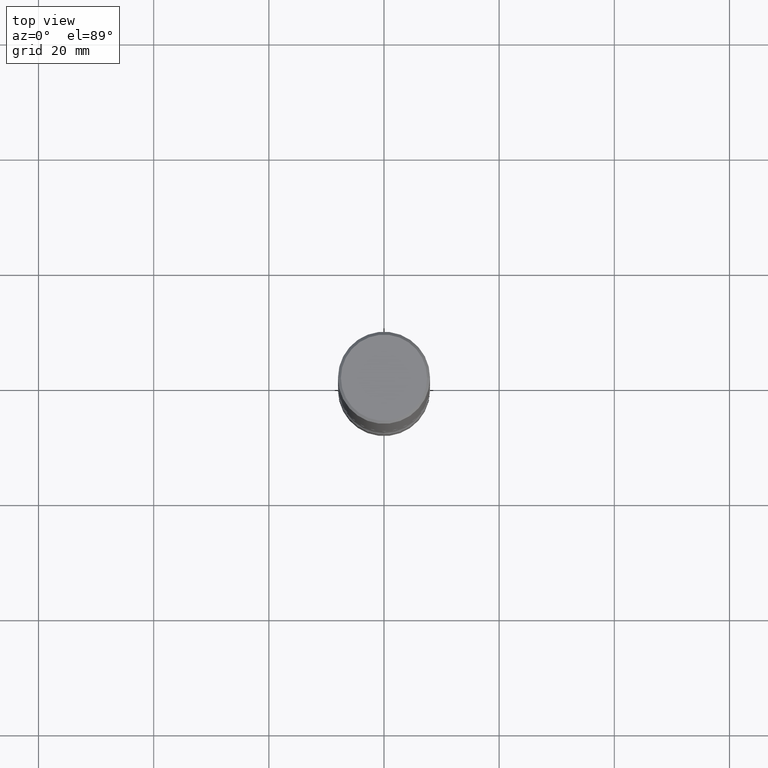
[diagram: clean part render]
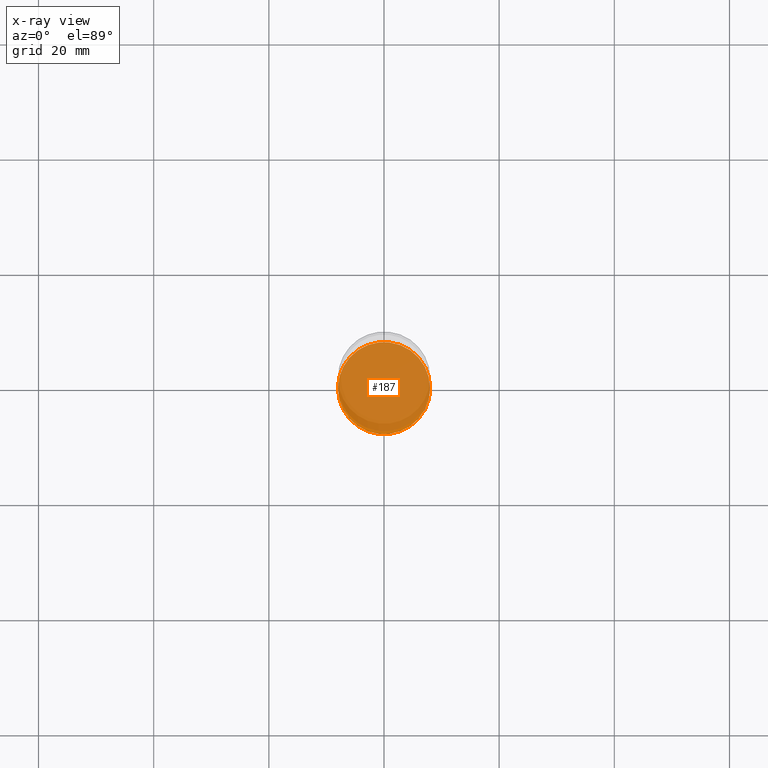
[diagram: x-ray — body ghosted, one internal face saturated and labeled with its STEP entity id]
A machine part, top view, then the same camera in x-ray: the body is ghosted and one INTERNAL B-rep face — a face not visible from any outside direction — is saturated and labeled: STEP entity #187.
In plain terms, the highlighted planar face has unit normal (0, -0, -1).
Its self-contained STEP definition (entity closure, byte-faithful):
#49 = DIRECTION ( 'NONE',  ( -2.445468806185136597E-29, 3.491481338843145583E-15, 1.000000000000000000 ) ) ;
#54 = PLANE ( 'NONE',  #529 ) ;
#55 = CARTESIAN_POINT ( 'NONE',  ( 1.010932349788873450E-28, -1.443343470664368071E-14, -4.133899999999999686 ) ) ;
#63 = CARTESIAN_POINT ( 'NONE',  ( 1.010932349788873450E-28, -1.443343470664368071E-14, -4.133899999999999686 ) ) ;
#127 = AXIS2_PLACEMENT_3D ( 'NONE', #63, #177, #143 ) ;
#143 = DIRECTION ( 'NONE',  ( 1.000000000000000000, -6.982962677686265922E-15, 0.000000000000000000 ) ) ;
#146 = CARTESIAN_POINT ( 'NONE',  ( 0.3149500000000001743, -1.663271880198097216E-14, -4.133899999999999686 ) ) ;
#151 = EDGE_CURVE ( 'NONE', #194, #436, #366, .T. ) ;
#177 = DIRECTION ( 'NONE',  ( -2.445468806185136597E-29, 3.491481338843145583E-15, 1.000000000000000000 ) ) ;
#179 = DIRECTION ( 'NONE',  ( -1.000000000000000000, 6.982962677686265922E-15, -4.876176775795935793E-29 ) ) ;
#187 = ADVANCED_FACE ( 'NONE', ( #311 ), #54, .F. ) ;
#194 = VERTEX_POINT ( 'NONE', #146 ) ;
#239 = ORIENTED_EDGE ( 'NONE', *, *, #243, .T. ) ;
#243 = EDGE_CURVE ( 'NONE', #436, #194, #547, .T. ) ;
#255 = CARTESIAN_POINT ( 'NONE',  ( -0.3149500000000001743, -1.339839568159870722E-14, -4.133899999999999686 ) ) ;
#279 = EDGE_LOOP ( 'NONE', ( #549, #239 ) ) ;
#311 = FACE_OUTER_BOUND ( 'NONE', #279, .T. ) ;
#366 = CIRCLE ( 'NONE', #557, 0.3149500000000001743 ) ;
#397 = DIRECTION ( 'NONE',  ( 2.438088387897960049E-29, -3.491481338843145188E-15, -1.000000000000000000 ) ) ;
#434 = CARTESIAN_POINT ( 'NONE',  ( 1.010932349788873450E-28, -1.443343470664368071E-14, -4.133899999999999686 ) ) ;
#436 = VERTEX_POINT ( 'NONE', #255 ) ;
#446 = DIRECTION ( 'NONE',  ( 1.000000000000000000, -6.982962677686265922E-15, 0.000000000000000000 ) ) ;
#529 = AXIS2_PLACEMENT_3D ( 'NONE', #434, #397, #179 ) ;
#547 = CIRCLE ( 'NONE', #127, 0.3149500000000001743 ) ;
#549 = ORIENTED_EDGE ( 'NONE', *, *, #151, .T. ) ;
#557 = AXIS2_PLACEMENT_3D ( 'NONE', #55, #49, #446 ) ;